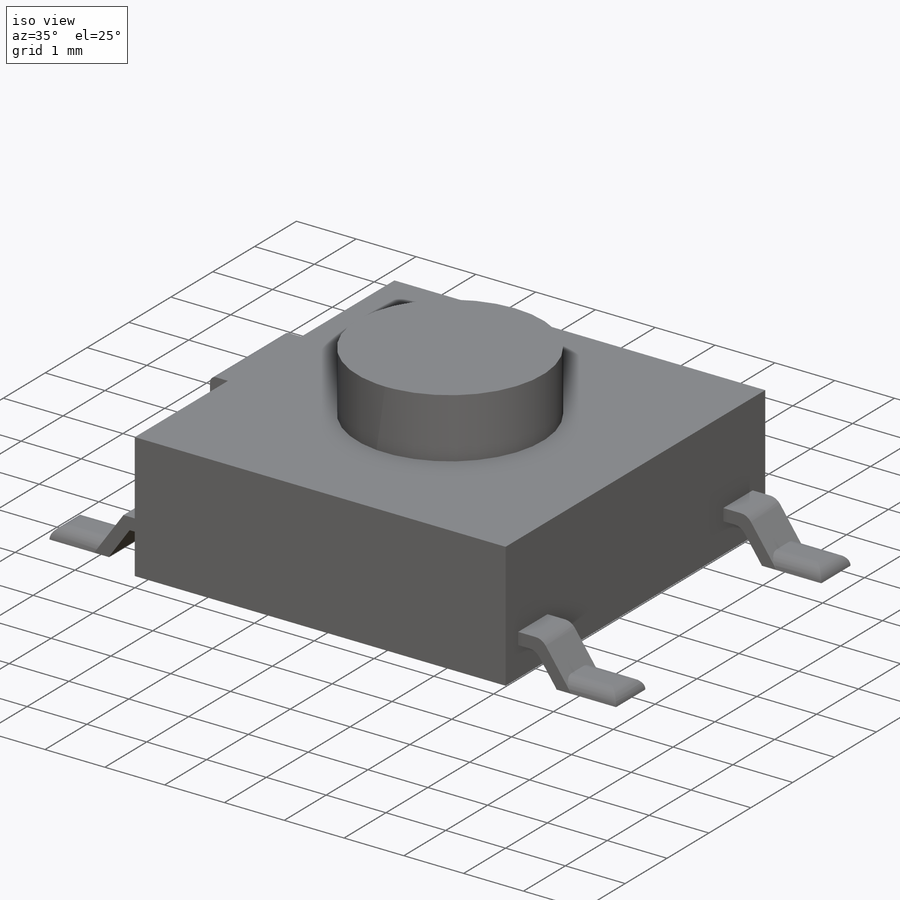
[diagram: iso view]
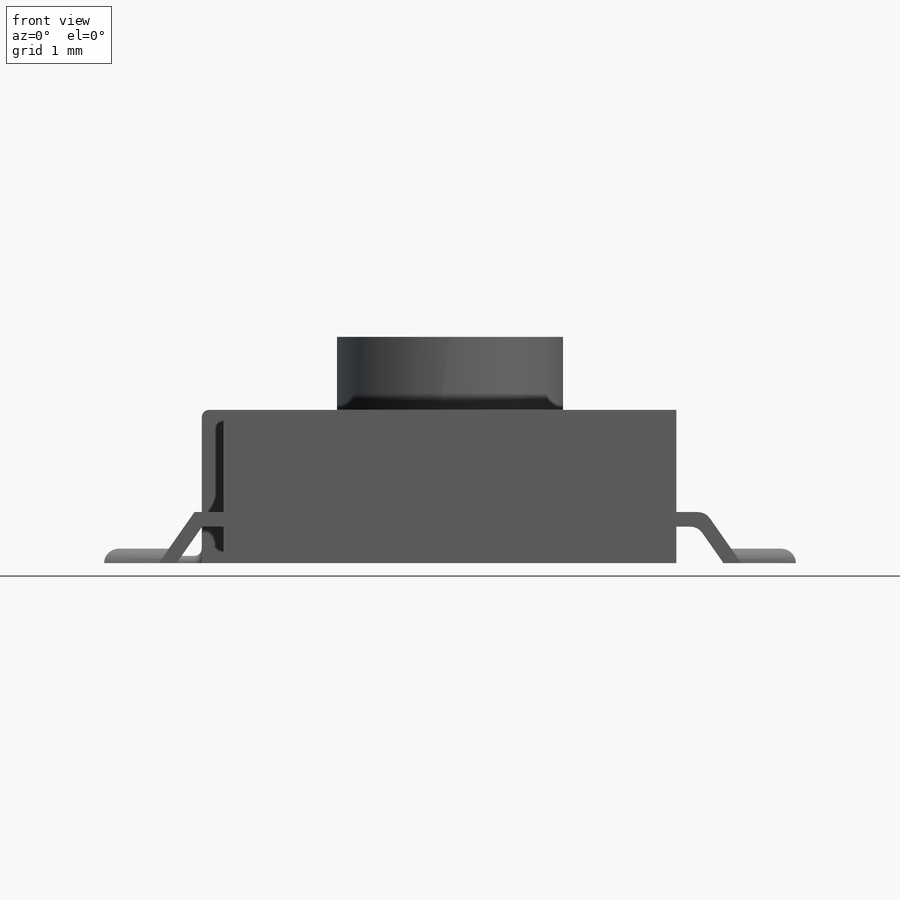
[diagram: front view]
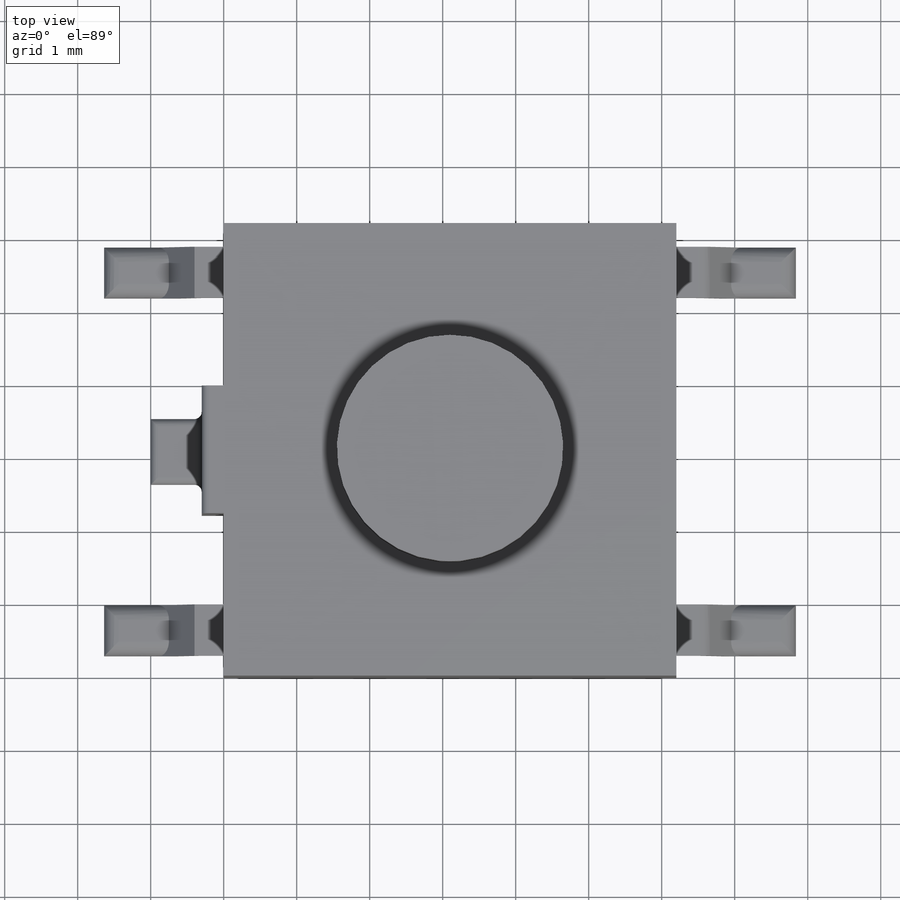
[diagram: top view]
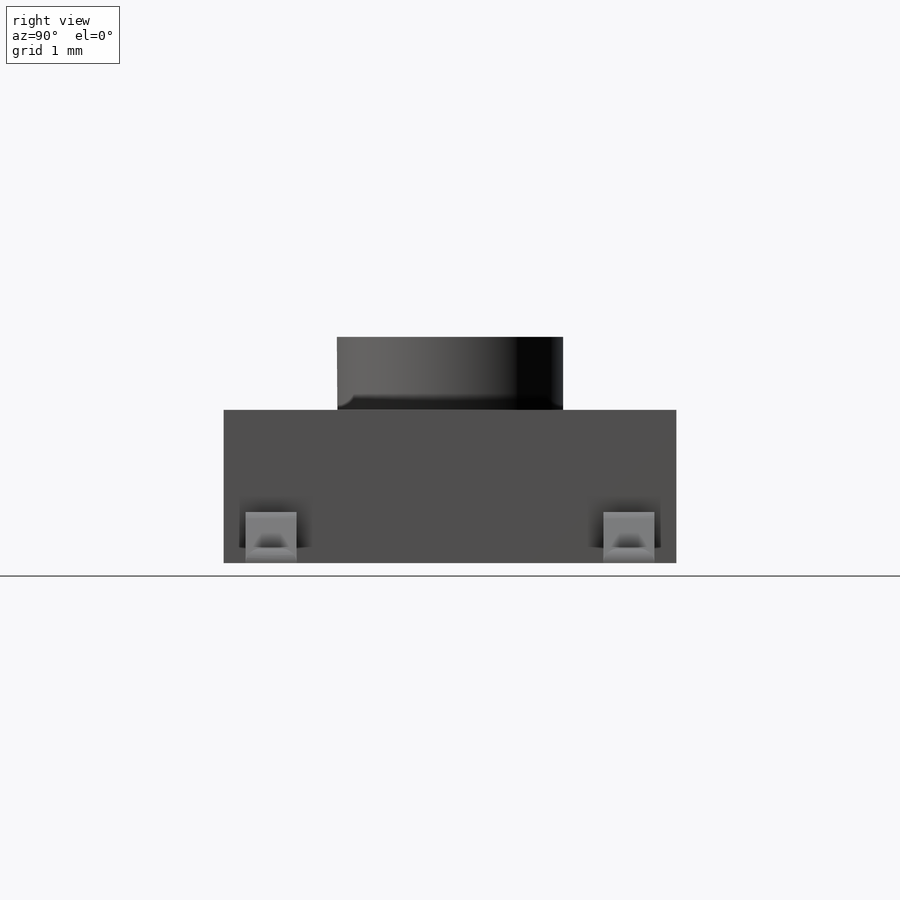
[diagram: right view]
SOLIDWORKS PART (.sldprt)
format: sldprt  version: not decoded by parser v0  size: 407,552 bytes
history: native  units: mm
features: sketch x12, extrude x10, plane x5, fillet x5, material x1 (+10 scaffold rows collapsed)
feature tree (43):
  scaffold x10  (default folders/planes/origin — collapsed)
  material  "Material <not specified>"
  plane  "Plan de face"
  plane  "Plan de dessus"
  plane  "Plan de droite"
  sketch  "Esquisse1"  dims[D1=6.2mm D2=6.2mm]
  extrude  "Boss.-Extru.1"  Depth=2.1mm
  sketch  "Esquisse2"  dims[D1=3.1mm]
  extrude  "Boss.-Extru.2"  Depth=1mm
  sketch  "Esquisse3"  dims[D1=1.75mm]
  extrude  "Boss.-Extru.3"  Depth=0.3mm
  sketch  "Esquisse4"  dims[D1=0.9mm D2=0.1mm]
  extrude  "Boss.-Extru.4"  Depth=0.7mm
  fillet  "Congé1"  Radius=0.1mm
  sketch  "Esquisse5"  dims[D1=0.3mm D2=0.2mm D3=0.7mm D4=0.5mm]
  extrude  "Boss.-Extru.5"  Depth=0.4mm
  sketch  "Esquisse6"
  plane  "Plan1"
  sketch  "Esquisse7"  dims[D1=0.7mm D2=0.2mm]
  extrude  "Boss.-Extru.6"  Depth=0.7mm
  fillet  "Congé2"  Radius=0.2mm
  sketch  "Esquisse9"  dims[D1=1.0mm]
  extrude  "Boss.-Extru.7"  Depth=0.2mm
  fillet  "Congé3"  Radius=0.2mm
  fillet  "Congé4"  Radius=0.2mm
  sketch  "Esquisse10"  dims[D3=0.2mm D1=0.0mm D2=0.0mm]
  extrude  "Boss.-Extru.10"  Depth=0.4mm
  sketch  "Esquisse13"
  plane  "Plan5"
  sketch  "Esquisse14"  dims[D1=0.2mm]
  extrude  "Boss.-Extru.11"  Depth=0.7mm
  sketch  "Esquisse16"  dims[D1=1.0mm D2=0.7mm D3=1.0mm D4=0.7mm]
  extrude  "Boss.-Extru.12"  Depth=0.2mm
  fillet  "Congé5"  Radius=0.2mm
decode coverage: 25 of 27 modeling features carry decoded parameters
note: suppression state not decoded; provenance and decode notes live in map.json
